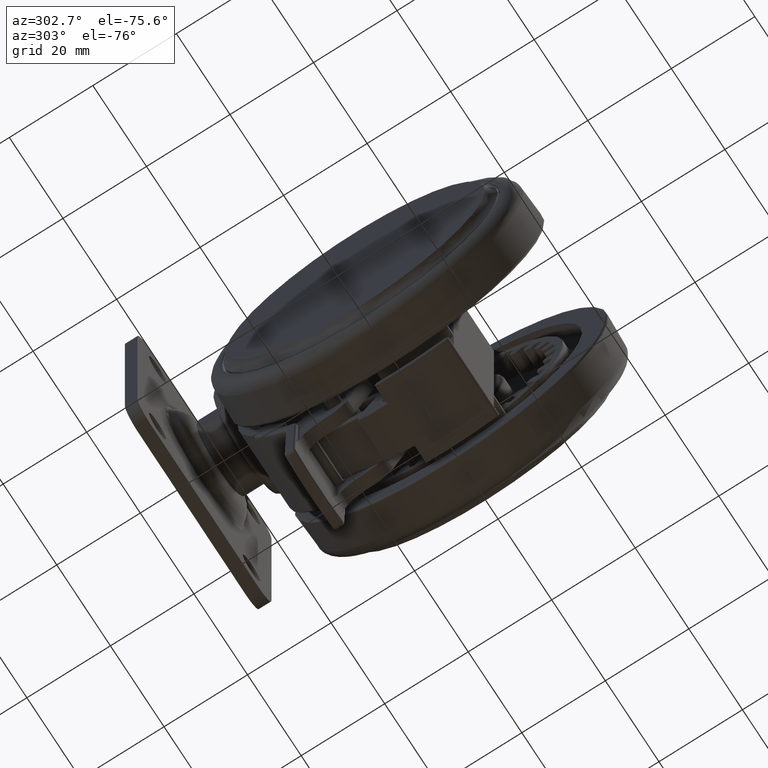
[diagram: clean part render]
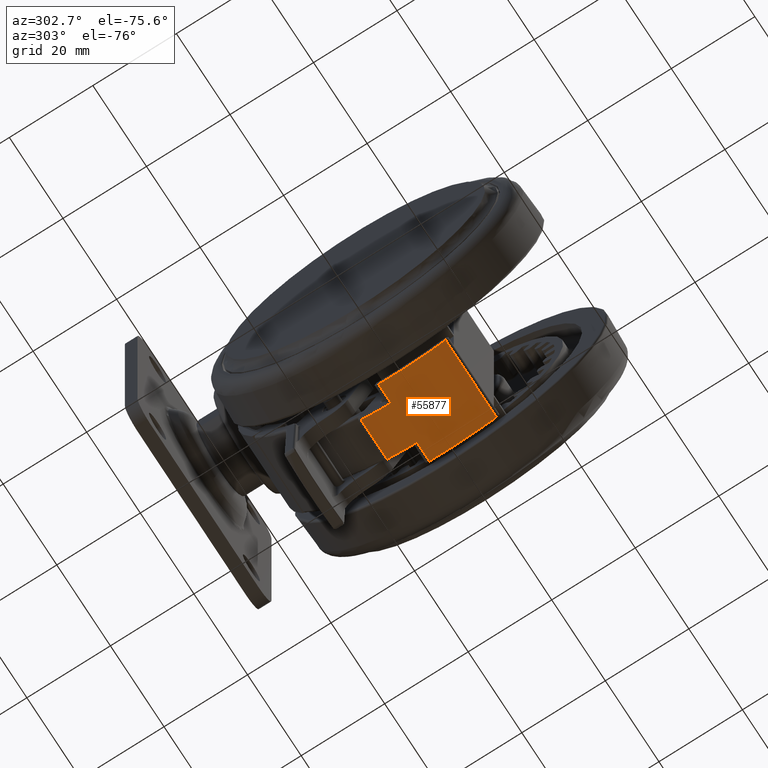
[diagram: same view with one face highlighted and labeled with its STEP entity id]
A machine part, auxiliary view. The second image highlights one B-rep face of the part: STEP entity #55877.
In plain terms, the highlighted cylindrical surface (partial cylindrical patch) has radius 37.5 mm, axis along (-1, 0, 0).
Its self-contained STEP definition (entity closure, byte-faithful):
#184 = VERTEX_POINT ( 'NONE', #51808 ) ;
#302 = CARTESIAN_POINT ( 'NONE',  ( 3.685858456678246000, 37.31841968033121800, -33.34999999999990900 ) ) ;
#748 = VERTEX_POINT ( 'NONE', #302 ) ;
#1176 = DIRECTION ( 'NONE',  ( -0.2343494435091680300, 0.9721524254595794700, 0.0000000000000000000 ) ) ;
#1827 = CARTESIAN_POINT ( 'NONE',  ( -19.02270238693387600, 32.31697377382575100, -14.34999999999990500 ) ) ;
#1839 = ORIENTED_EDGE ( 'NONE', *, *, #28431, .T. ) ;
#1887 = ORIENTED_EDGE ( 'NONE', *, *, #30665, .T. ) ;
#5363 = DIRECTION ( 'NONE',  ( 0.0000000000000000000, -0.0000000000000000000, -1.000000000000000000 ) ) ;
#7170 = DIRECTION ( 'NONE',  ( 0.0000000000000000000, -0.0000000000000000000, -1.000000000000000000 ) ) ;
#7260 = CARTESIAN_POINT ( 'NONE',  ( -12.38699541169394500, 35.39508927338189900, -33.34999999999990900 ) ) ;
#7988 = CARTESIAN_POINT ( 'NONE',  ( -12.38699541169394500, 35.39508927338189900, -14.34999999999990500 ) ) ;
#9528 = ORIENTED_EDGE ( 'NONE', *, *, #17123, .T. ) ;
#10253 = VERTEX_POINT ( 'NONE', #20989 ) ;
#10392 = VERTEX_POINT ( 'NONE', #45810 ) ;
#10623 = ORIENTED_EDGE ( 'NONE', *, *, #30443, .T. ) ;
#10631 = ORIENTED_EDGE ( 'NONE', *, *, #14047, .F. ) ;
#11147 = CIRCLE ( 'NONE', #35318, 37.50000000000000700 ) ;
#12870 = CARTESIAN_POINT ( 'NONE',  ( 6.938893903907228400E-015, 0.0000000000000000000, -14.34999999999990500 ) ) ;
#13691 = DIRECTION ( 'NONE',  ( -0.0000000000000000000, 0.0000000000000000000, 1.000000000000000000 ) ) ;
#14047 = EDGE_CURVE ( 'NONE', #10253, #10392, #26008, .T. ) ;
#15672 = EDGE_CURVE ( 'NONE', #50409, #15896, #18613, .T. ) ;
#15896 = VERTEX_POINT ( 'NONE', #60255 ) ;
#16710 = AXIS2_PLACEMENT_3D ( 'NONE', #12870, #7170, #47277 ) ;
#17123 = EDGE_CURVE ( 'NONE', #72238, #184, #61509, .T. ) ;
#18311 = DIRECTION ( 'NONE',  ( 0.0000000000000000000, -0.0000000000000000000, -1.000000000000000000 ) ) ;
#18613 = LINE ( 'NONE', #73139, #32049 ) ;
#19722 = CYLINDRICAL_SURFACE ( 'NONE', #16710, 37.50000000000000700 ) ;
#19882 = LINE ( 'NONE', #1827, #72882 ) ;
#20989 = CARTESIAN_POINT ( 'NONE',  ( 3.685858456678246000, 37.31841968033121800, -14.34999999999990500 ) ) ;
#21589 = CARTESIAN_POINT ( 'NONE',  ( 6.938893903907228400E-015, 0.0000000000000000000, -28.69999999999990700 ) ) ;
#25769 = CARTESIAN_POINT ( 'NONE',  ( 6.938893903907228400E-015, 0.0000000000000000000, -33.34999999999990900 ) ) ;
#25923 = LINE ( 'NONE', #7988, #54662 ) ;
#26008 = CIRCLE ( 'NONE', #54352, 37.50000000000000700 ) ;
#27301 = DIRECTION ( 'NONE',  ( -0.2343494435091680300, 0.9721524254595794700, 0.0000000000000000000 ) ) ;
#28431 = EDGE_CURVE ( 'NONE', #748, #50409, #11147, .T. ) ;
#28700 = AXIS2_PLACEMENT_3D ( 'NONE', #21589, #61717, #27301 ) ;
#30443 = EDGE_CURVE ( 'NONE', #68016, #72238, #19882, .T. ) ;
#30665 = EDGE_CURVE ( 'NONE', #15896, #68016, #68311, .T. ) ;
#31535 = DIRECTION ( 'NONE',  ( -0.2343494435091680300, 0.9721524254595794700, 0.0000000000000000000 ) ) ;
#32049 = VECTOR ( 'NONE', #67351, 1000.000000000000000 ) ;
#32852 = CARTESIAN_POINT ( 'NONE',  ( -19.02270238693387600, 32.31697377382575100, -28.69999999999990700 ) ) ;
#35318 = AXIS2_PLACEMENT_3D ( 'NONE', #25769, #65919, #31535 ) ;
#35506 = DIRECTION ( 'NONE',  ( 0.0000000000000000000, 0.0000000000000000000, 1.000000000000000000 ) ) ;
#39699 = CARTESIAN_POINT ( 'NONE',  ( 6.938893903907228400E-015, 0.0000000000000000000, -18.99999999999990800 ) ) ;
#40793 = CARTESIAN_POINT ( 'NONE',  ( -19.02270238693387600, 32.31697377382575100, -18.99999999999990800 ) ) ;
#41978 = DIRECTION ( 'NONE',  ( -0.0000000000000000000, 0.0000000000000000000, 1.000000000000000000 ) ) ;
#45512 = DIRECTION ( 'NONE',  ( 0.2343494435091680300, -0.9721524254595794700, 0.0000000000000000000 ) ) ;
#45810 = CARTESIAN_POINT ( 'NONE',  ( -12.38699541169394500, 35.39508927338189900, -14.34999999999990500 ) ) ;
#47277 = DIRECTION ( 'NONE',  ( 0.2343494435091680300, -0.9721524254595794700, 0.0000000000000000000 ) ) ;
#47338 = AXIS2_PLACEMENT_3D ( 'NONE', #39699, #5363, #45512 ) ;
#48522 = ORIENTED_EDGE ( 'NONE', *, *, #50493, .T. ) ;
#48546 = ORIENTED_EDGE ( 'NONE', *, *, #51894, .T. ) ;
#49993 = LINE ( 'NONE', #58438, #63443 ) ;
#50230 = FACE_OUTER_BOUND ( 'NONE', #58894, .T. ) ;
#50409 = VERTEX_POINT ( 'NONE', #7260 ) ;
#50493 = EDGE_CURVE ( 'NONE', #184, #10392, #25923, .T. ) ;
#51808 = CARTESIAN_POINT ( 'NONE',  ( -12.38699541169394500, 35.39508927338189900, -18.99999999999990800 ) ) ;
#51894 = EDGE_CURVE ( 'NONE', #10253, #748, #49993, .T. ) ;
#53469 = ORIENTED_EDGE ( 'NONE', *, *, #15672, .T. ) ;
#54352 = AXIS2_PLACEMENT_3D ( 'NONE', #69887, #35506, #1176 ) ;
#54662 = VECTOR ( 'NONE', #13691, 1000.000000000000000 ) ;
#55877 = ADVANCED_FACE ( 'NONE', ( #50230 ), #19722, .T. ) ;
#58438 = CARTESIAN_POINT ( 'NONE',  ( 3.685858456678246000, 37.31841968033121800, -14.34999999999990500 ) ) ;
#58894 = EDGE_LOOP ( 'NONE', ( #53469, #1887, #10623, #9528, #48522, #10631, #48546, #1839 ) ) ;
#60255 = CARTESIAN_POINT ( 'NONE',  ( -12.38699541169394500, 35.39508927338189900, -28.69999999999990700 ) ) ;
#61509 = CIRCLE ( 'NONE', #47338, 37.50000000000000700 ) ;
#61717 = DIRECTION ( 'NONE',  ( 0.0000000000000000000, 0.0000000000000000000, 1.000000000000000000 ) ) ;
#63443 = VECTOR ( 'NONE', #18311, 1000.000000000000000 ) ;
#65919 = DIRECTION ( 'NONE',  ( 0.0000000000000000000, 0.0000000000000000000, 1.000000000000000000 ) ) ;
#67351 = DIRECTION ( 'NONE',  ( -0.0000000000000000000, 0.0000000000000000000, 1.000000000000000000 ) ) ;
#68016 = VERTEX_POINT ( 'NONE', #32852 ) ;
#68311 = CIRCLE ( 'NONE', #28700, 37.50000000000000700 ) ;
#69887 = CARTESIAN_POINT ( 'NONE',  ( 6.938893903907228400E-015, 0.0000000000000000000, -14.34999999999990500 ) ) ;
#72238 = VERTEX_POINT ( 'NONE', #40793 ) ;
#72882 = VECTOR ( 'NONE', #41978, 1000.000000000000000 ) ;
#73139 = CARTESIAN_POINT ( 'NONE',  ( -12.38699541169394500, 35.39508927338189900, -14.34999999999990500 ) ) ;